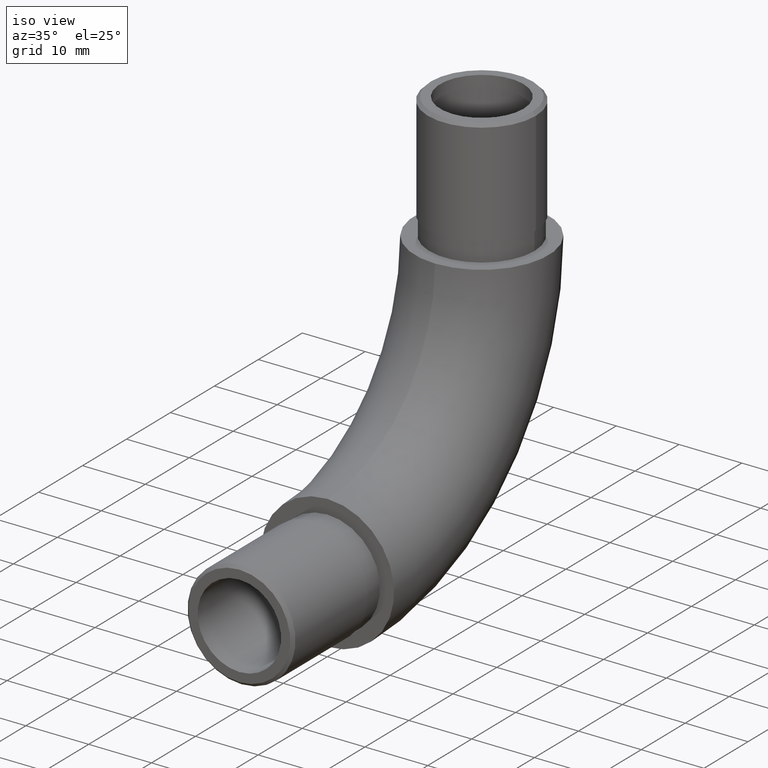
[diagram: clean part render]
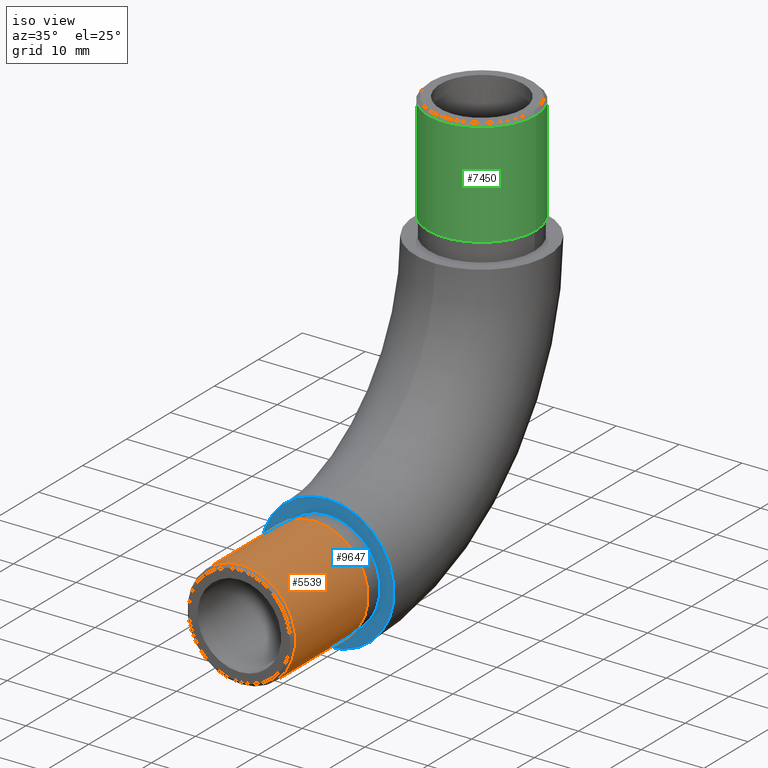
[diagram: same view with three faces highlighted in distinct colors, each labeled with its STEP entity id]
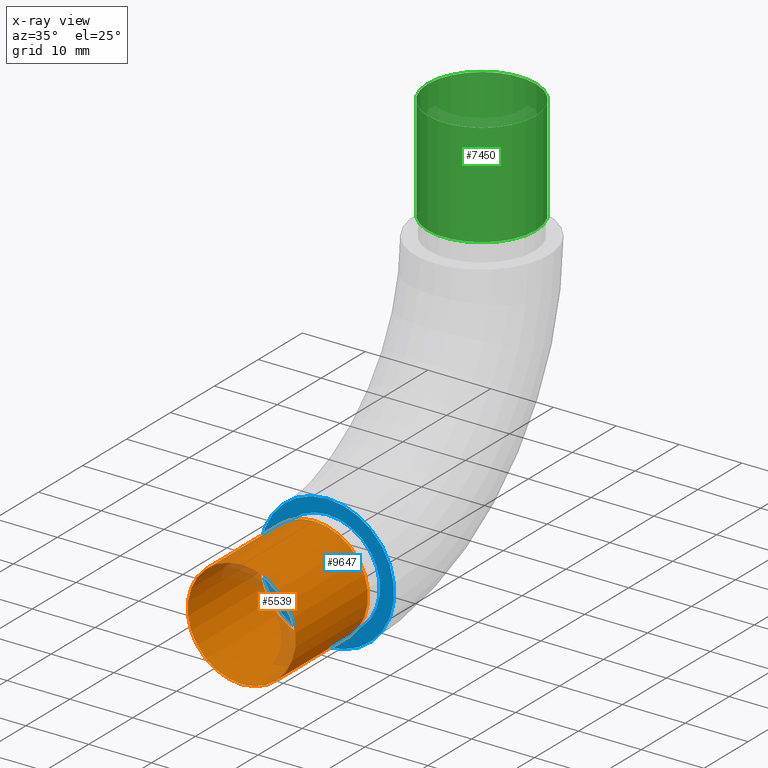
[diagram: x-ray of the same camera — body ghosted, the three highlighted faces saturated]
A machine part, iso view with three faces highlighted in distinct colors.
The next image is the same camera in x-ray (body ghosted, the three faces saturated) — at least one of them is partly hidden behind the body in this view.
Their STEP definitions:

[orange] entity #5539 — the highlighted cylindrical surface (bore or boss wall) has radius 8.6 mm, axis along (-0, 1, -0).
#95 = CIRCLE ( 'NONE', #1506, 8.599999999999999600 ) ;
#581 = AXIS2_PLACEMENT_3D ( 'NONE', #1029, #11885, #7542 ) ;
#1029 = CARTESIAN_POINT ( 'NONE',  ( 0.0000000000000000000, -20.00000000000000000, 10.65000000000000000 ) ) ;
#1506 = AXIS2_PLACEMENT_3D ( 'NONE', #3562, #4642, #13273 ) ;
#1992 = EDGE_CURVE ( 'NONE', #11364, #11364, #95, .T. ) ;
#3562 = CARTESIAN_POINT ( 'NONE',  ( 0.0000000000000000000, -19.50000000000000400, 10.65000000000000000 ) ) ;
#3758 = AXIS2_PLACEMENT_3D ( 'NONE', #9954, #12171, #5646 ) ;
#4075 = EDGE_CURVE ( 'NONE', #7814, #7814, #11540, .T. ) ;
#4642 = DIRECTION ( 'NONE',  ( 0.0000000000000000000, 1.000000000000000000, 0.0000000000000000000 ) ) ;
#5539 = ADVANCED_FACE ( 'NONE', ( #5601, #8642 ), #5770, .T. ) ;
#5601 = FACE_OUTER_BOUND ( 'NONE', #6937, .T. ) ;
#5646 = DIRECTION ( 'NONE',  ( 0.0000000000000000000, 0.0000000000000000000, -1.000000000000000000 ) ) ;
#5770 = CYLINDRICAL_SURFACE ( 'NONE', #581, 8.599999999999999600 ) ;
#6906 = EDGE_LOOP ( 'NONE', ( #13331 ) ) ;
#6937 = EDGE_LOOP ( 'NONE', ( #11322 ) ) ;
#7542 = DIRECTION ( 'NONE',  ( 0.0000000000000000000, 0.0000000000000000000, 1.000000000000000000 ) ) ;
#7814 = VERTEX_POINT ( 'NONE', #9866 ) ;
#7824 = CARTESIAN_POINT ( 'NONE',  ( 0.0000000000000000000, -19.50000000000000400, 2.049999999999999800 ) ) ;
#8642 = FACE_OUTER_BOUND ( 'NONE', #6906, .T. ) ;
#9866 = CARTESIAN_POINT ( 'NONE',  ( 0.0000000000000000000, -3.000000000000000000, 2.049999999999999800 ) ) ;
#9954 = CARTESIAN_POINT ( 'NONE',  ( 0.0000000000000000000, -3.000000000000000000, 10.65000000000000000 ) ) ;
#11322 = ORIENTED_EDGE ( 'NONE', *, *, #1992, .T. ) ;
#11364 = VERTEX_POINT ( 'NONE', #7824 ) ;
#11540 = CIRCLE ( 'NONE', #3758, 8.599999999999999600 ) ;
#11885 = DIRECTION ( 'NONE',  ( -0.0000000000000000000, 1.000000000000000000, -0.0000000000000000000 ) ) ;
#12171 = DIRECTION ( 'NONE',  ( 0.0000000000000000000, -1.000000000000000000, 0.0000000000000000000 ) ) ;
#13273 = DIRECTION ( 'NONE',  ( 0.0000000000000000000, 0.0000000000000000000, -1.000000000000000000 ) ) ;
#13331 = ORIENTED_EDGE ( 'NONE', *, *, #4075, .T. ) ;

[blue] entity #9647 — the highlighted planar face has unit normal (0, 1, 0).
#249 = CARTESIAN_POINT ( 'NONE',  ( 0.0000000000000000000, 0.0000000000000000000, 21.30000000000000100 ) ) ;
#772 = DIRECTION ( 'NONE',  ( 0.0000000000000000000, 0.0000000000000000000, 1.000000000000000000 ) ) ;
#858 = DIRECTION ( 'NONE',  ( 0.0000000000000000000, 1.000000000000000000, 0.0000000000000000000 ) ) ;
#1356 = EDGE_LOOP ( 'NONE', ( #9280 ) ) ;
#2250 = VERTEX_POINT ( 'NONE', #3458 ) ;
#3458 = CARTESIAN_POINT ( 'NONE',  ( 0.0000000000000000000, 0.0000000000000000000, 19.05000000000000100 ) ) ;
#4074 = DIRECTION ( 'NONE',  ( 0.0000000000000000000, 0.0000000000000000000, 1.000000000000000000 ) ) ;
#4195 = EDGE_LOOP ( 'NONE', ( #5417 ) ) ;
#4199 = CIRCLE ( 'NONE', #9107, 10.65000000000000000 ) ;
#4251 = PLANE ( 'NONE',  #10614 ) ;
#4445 = DIRECTION ( 'NONE',  ( 0.0000000000000000000, 1.000000000000000000, 0.0000000000000000000 ) ) ;
#5144 = CARTESIAN_POINT ( 'NONE',  ( 0.0000000000000000000, 0.0000000000000000000, 10.65000000000000000 ) ) ;
#5357 = CIRCLE ( 'NONE', #11356, 8.400000000000000400 ) ;
#5417 = ORIENTED_EDGE ( 'NONE', *, *, #8339, .F. ) ;
#6218 = CARTESIAN_POINT ( 'NONE',  ( 0.0000000000000000000, 0.0000000000000000000, 10.65000000000000000 ) ) ;
#8059 = FACE_BOUND ( 'NONE', #1356, .T. ) ;
#8339 = EDGE_CURVE ( 'NONE', #13414, #13414, #4199, .T. ) ;
#9107 = AXIS2_PLACEMENT_3D ( 'NONE', #6218, #858, #772 ) ;
#9280 = ORIENTED_EDGE ( 'NONE', *, *, #9527, .F. ) ;
#9527 = EDGE_CURVE ( 'NONE', #2250, #2250, #5357, .T. ) ;
#9647 = ADVANCED_FACE ( 'NONE', ( #12953, #8059 ), #4251, .F. ) ;
#10614 = AXIS2_PLACEMENT_3D ( 'NONE', #12867, #4445, #11981 ) ;
#10635 = DIRECTION ( 'NONE',  ( -0.0000000000000000000, -1.000000000000000000, -0.0000000000000000000 ) ) ;
#11356 = AXIS2_PLACEMENT_3D ( 'NONE', #5144, #10635, #4074 ) ;
#11981 = DIRECTION ( 'NONE',  ( 0.0000000000000000000, -0.0000000000000000000, 1.000000000000000000 ) ) ;
#12867 = CARTESIAN_POINT ( 'NONE',  ( 0.0000000000000000000, 0.0000000000000000000, 10.65000000000000000 ) ) ;
#12953 = FACE_OUTER_BOUND ( 'NONE', #4195, .T. ) ;
#13414 = VERTEX_POINT ( 'NONE', #249 ) ;

[green] entity #7450 — the highlighted cylindrical surface (bore or boss wall) has radius 8.6 mm, axis along (-0, -0, -1).
#1962 = EDGE_LOOP ( 'NONE', ( #2770 ) ) ;
#2219 = AXIS2_PLACEMENT_3D ( 'NONE', #10312, #2965, #12534 ) ;
#2770 = ORIENTED_EDGE ( 'NONE', *, *, #5769, .T. ) ;
#2965 = DIRECTION ( 'NONE',  ( 0.0000000000000000000, 0.0000000000000000000, -1.000000000000000000 ) ) ;
#3099 = VERTEX_POINT ( 'NONE', #11073 ) ;
#3402 = AXIS2_PLACEMENT_3D ( 'NONE', #6771, #11096, #3579 ) ;
#3579 = DIRECTION ( 'NONE',  ( 1.000000000000000000, 0.0000000000000000000, 0.0000000000000000000 ) ) ;
#3653 = DIRECTION ( 'NONE',  ( -1.000000000000000000, 0.0000000000000000000, 0.0000000000000000000 ) ) ;
#3841 = DIRECTION ( 'NONE',  ( -0.0000000000000000000, -0.0000000000000000000, -1.000000000000000000 ) ) ;
#5470 = AXIS2_PLACEMENT_3D ( 'NONE', #6982, #3841, #3653 ) ;
#5769 = EDGE_CURVE ( 'NONE', #3099, #3099, #6257, .T. ) ;
#6257 = CIRCLE ( 'NONE', #3402, 8.600000000000001400 ) ;
#6771 = CARTESIAN_POINT ( 'NONE',  ( 0.0000000000000000000, 35.14999999999999900, 48.80000000000001100 ) ) ;
#6982 = CARTESIAN_POINT ( 'NONE',  ( 0.0000000000000000000, 35.14999999999999900, 65.80000000000001100 ) ) ;
#7450 = ADVANCED_FACE ( 'NONE', ( #8088, #12317 ), #9450, .T. ) ;
#8088 = FACE_OUTER_BOUND ( 'NONE', #13461, .T. ) ;
#9176 = VERTEX_POINT ( 'NONE', #9816 ) ;
#9373 = ORIENTED_EDGE ( 'NONE', *, *, #10054, .T. ) ;
#9409 = CIRCLE ( 'NONE', #2219, 8.600000000000001400 ) ;
#9450 = CYLINDRICAL_SURFACE ( 'NONE', #5470, 8.600000000000001400 ) ;
#9816 = CARTESIAN_POINT ( 'NONE',  ( 8.600000000000001400, 35.14999999999999900, 65.29999999999999700 ) ) ;
#10054 = EDGE_CURVE ( 'NONE', #9176, #9176, #9409, .T. ) ;
#10312 = CARTESIAN_POINT ( 'NONE',  ( 0.0000000000000000000, 35.14999999999999900, 65.29999999999999700 ) ) ;
#11073 = CARTESIAN_POINT ( 'NONE',  ( 8.600000000000001400, 35.14999999999999900, 48.80000000000001100 ) ) ;
#11096 = DIRECTION ( 'NONE',  ( 0.0000000000000000000, 0.0000000000000000000, 1.000000000000000000 ) ) ;
#12317 = FACE_OUTER_BOUND ( 'NONE', #1962, .T. ) ;
#12534 = DIRECTION ( 'NONE',  ( 1.000000000000000000, 0.0000000000000000000, 0.0000000000000000000 ) ) ;
#13461 = EDGE_LOOP ( 'NONE', ( #9373 ) ) ;